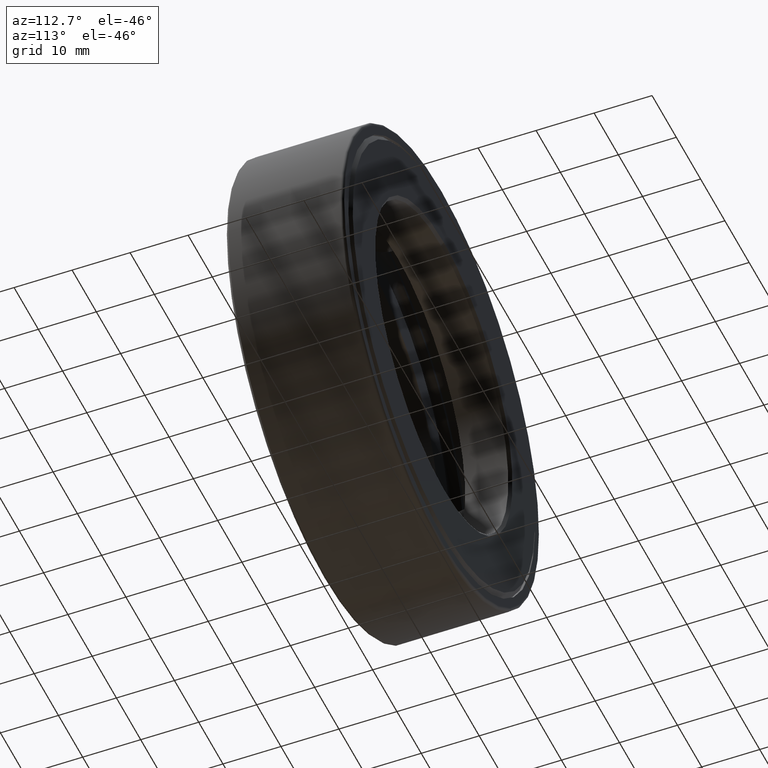
[diagram: clean part render]
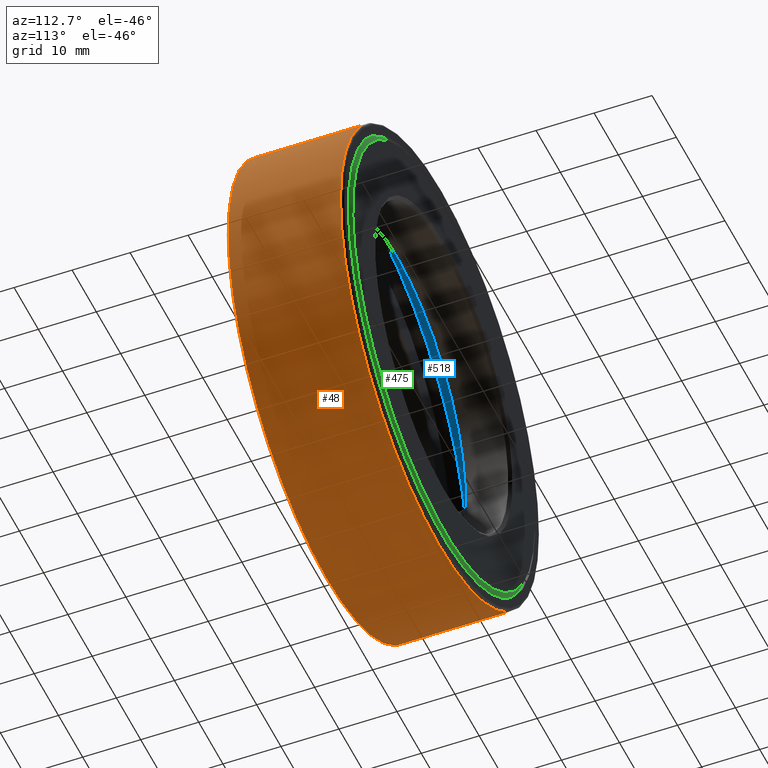
[diagram: same view with three faces highlighted in distinct colors, each labeled with its STEP entity id]
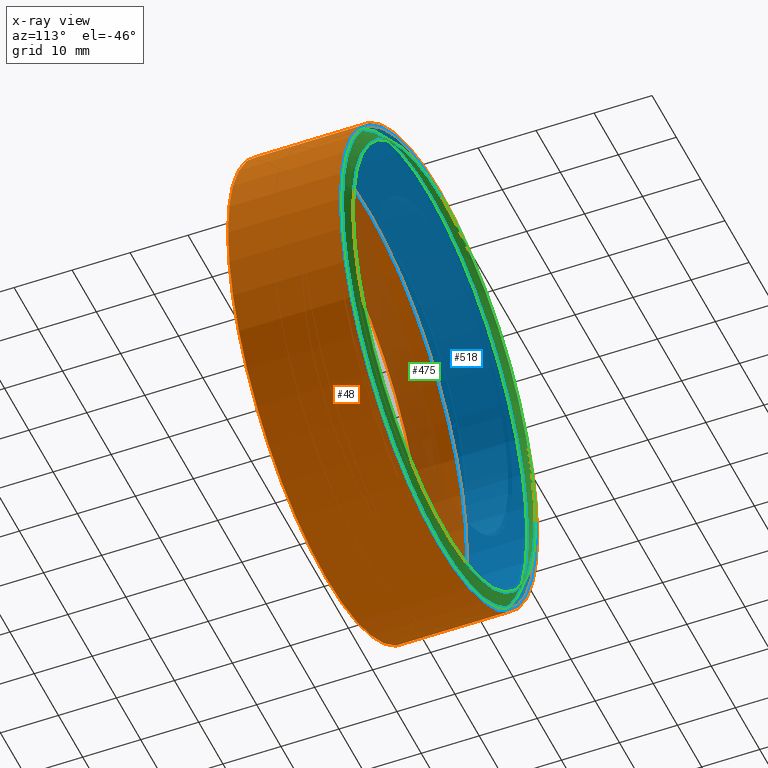
[diagram: x-ray of the same camera — body ghosted, the three highlighted faces saturated]
A machine part, auxiliary view with three faces highlighted in distinct colors.
The next image is the same camera in x-ray (body ghosted, the three faces saturated) — at least one of them is partly hidden behind the body in this view.
Their STEP definitions:

[orange] entity #48 — the highlighted cylindrical surface (bore or boss wall) has radius 40.4812 mm, axis along (-0, 1, -0).
#11 = CYLINDRICAL_SURFACE ( 'NONE', #218, 1.593749999999999600 ) ;
#21 = VERTEX_POINT ( 'NONE', #289 ) ;
#32 = ORIENTED_EDGE ( 'NONE', *, *, #457, .F. ) ;
#41 = CARTESIAN_POINT ( 'NONE',  ( 0.0000000000000000000, 0.01499999999999984000, 1.593749999999999300 ) ) ;
#48 = ADVANCED_FACE ( 'NONE', ( #277, #313 ), #11, .T. ) ;
#72 = EDGE_LOOP ( 'NONE', ( #557 ) ) ;
#76 = EDGE_CURVE ( 'NONE', #156, #156, #242, .T. ) ;
#83 = CARTESIAN_POINT ( 'NONE',  ( 0.0000000000000000000, 0.0000000000000000000, 0.0000000000000000000 ) ) ;
#92 = DIRECTION ( 'NONE',  ( -0.0000000000000000000, 1.000000000000000000, -0.0000000000000000000 ) ) ;
#133 = AXIS2_PLACEMENT_3D ( 'NONE', #602, #92, #337 ) ;
#156 = VERTEX_POINT ( 'NONE', #41 ) ;
#190 = AXIS2_PLACEMENT_3D ( 'NONE', #496, #541, #210 ) ;
#210 = DIRECTION ( 'NONE',  ( 0.0000000000000000000, 0.0000000000000000000, 1.000000000000000000 ) ) ;
#218 = AXIS2_PLACEMENT_3D ( 'NONE', #83, #462, #364 ) ;
#242 = CIRCLE ( 'NONE', #133, 1.593749999999999300 ) ;
#277 = FACE_OUTER_BOUND ( 'NONE', #349, .T. ) ;
#289 = CARTESIAN_POINT ( 'NONE',  ( 0.0000000000000000000, 0.7774999999999999700, 1.593750000000000000 ) ) ;
#313 = FACE_OUTER_BOUND ( 'NONE', #72, .T. ) ;
#337 = DIRECTION ( 'NONE',  ( 0.0000000000000000000, 0.0000000000000000000, 1.000000000000000000 ) ) ;
#349 = EDGE_LOOP ( 'NONE', ( #32 ) ) ;
#364 = DIRECTION ( 'NONE',  ( 0.0000000000000000000, 0.0000000000000000000, 1.000000000000000000 ) ) ;
#457 = EDGE_CURVE ( 'NONE', #21, #21, #515, .T. ) ;
#462 = DIRECTION ( 'NONE',  ( -0.0000000000000000000, 1.000000000000000000, -0.0000000000000000000 ) ) ;
#496 = CARTESIAN_POINT ( 'NONE',  ( 0.0000000000000000000, 0.7774999999999999700, 0.0000000000000000000 ) ) ;
#515 = CIRCLE ( 'NONE', #190, 1.593750000000000000 ) ;
#541 = DIRECTION ( 'NONE',  ( -0.0000000000000000000, 1.000000000000000000, -0.0000000000000000000 ) ) ;
#557 = ORIENTED_EDGE ( 'NONE', *, *, #76, .T. ) ;
#602 = CARTESIAN_POINT ( 'NONE',  ( 0.0000000000000000000, 0.01499999999999984000, 0.0000000000000000000 ) ) ;

[blue] entity #518 — the highlighted cylindrical surface (bore or boss wall) has radius 39.9733 mm, axis along (-0, 1, -0).
#8 = CARTESIAN_POINT ( 'NONE',  ( 0.0000000000000000000, 0.3124999999999998900, 1.573749999999999800 ) ) ;
#19 = DIRECTION ( 'NONE',  ( 0.0000000000000000000, 0.0000000000000000000, 1.000000000000000000 ) ) ;
#71 = AXIS2_PLACEMENT_3D ( 'NONE', #460, #181, #82 ) ;
#82 = DIRECTION ( 'NONE',  ( 0.0000000000000000000, 0.0000000000000000000, 1.000000000000000000 ) ) ;
#115 = DIRECTION ( 'NONE',  ( -0.0000000000000000000, 1.000000000000000000, -0.0000000000000000000 ) ) ;
#128 = FACE_OUTER_BOUND ( 'NONE', #396, .T. ) ;
#131 = CARTESIAN_POINT ( 'NONE',  ( 0.0000000000000000000, 0.7775000000000000800, 1.573749999999999800 ) ) ;
#181 = DIRECTION ( 'NONE',  ( -0.0000000000000000000, 1.000000000000000000, -0.0000000000000000000 ) ) ;
#220 = EDGE_LOOP ( 'NONE', ( #539 ) ) ;
#240 = FACE_OUTER_BOUND ( 'NONE', #220, .T. ) ;
#264 = VERTEX_POINT ( 'NONE', #131 ) ;
#270 = VERTEX_POINT ( 'NONE', #8 ) ;
#297 = CIRCLE ( 'NONE', #497, 1.573749999999999800 ) ;
#302 = DIRECTION ( 'NONE',  ( -0.0000000000000000000, 1.000000000000000000, -0.0000000000000000000 ) ) ;
#354 = EDGE_CURVE ( 'NONE', #264, #264, #297, .T. ) ;
#377 = CIRCLE ( 'NONE', #71, 1.573749999999999800 ) ;
#396 = EDGE_LOOP ( 'NONE', ( #436 ) ) ;
#436 = ORIENTED_EDGE ( 'NONE', *, *, #599, .F. ) ;
#460 = CARTESIAN_POINT ( 'NONE',  ( 0.0000000000000000000, 0.3124999999999998900, 0.0000000000000000000 ) ) ;
#493 = CYLINDRICAL_SURFACE ( 'NONE', #595, 1.573750000000000200 ) ;
#497 = AXIS2_PLACEMENT_3D ( 'NONE', #529, #115, #582 ) ;
#518 = ADVANCED_FACE ( 'NONE', ( #128, #240 ), #493, .F. ) ;
#529 = CARTESIAN_POINT ( 'NONE',  ( 0.0000000000000000000, 0.7775000000000000800, 0.0000000000000000000 ) ) ;
#539 = ORIENTED_EDGE ( 'NONE', *, *, #354, .T. ) ;
#542 = CARTESIAN_POINT ( 'NONE',  ( 0.0000000000000000000, 0.0000000000000000000, 0.0000000000000000000 ) ) ;
#582 = DIRECTION ( 'NONE',  ( 0.0000000000000000000, 0.0000000000000000000, 1.000000000000000000 ) ) ;
#595 = AXIS2_PLACEMENT_3D ( 'NONE', #542, #302, #19 ) ;
#599 = EDGE_CURVE ( 'NONE', #270, #270, #377, .T. ) ;

[green] entity #475 — the highlighted conical surface has half-angle 45 deg.
#16 = CONICAL_SURFACE ( 'NONE', #375, 1.478749999999999600, 0.7853981633974498300 ) ;
#33 = EDGE_CURVE ( 'NONE', #565, #565, #154, .T. ) ;
#34 = ORIENTED_EDGE ( 'NONE', *, *, #231, .F. ) ;
#64 = DIRECTION ( 'NONE',  ( 0.0000000000000000000, 0.0000000000000000000, -1.000000000000000000 ) ) ;
#97 = CARTESIAN_POINT ( 'NONE',  ( 0.0000000000000000000, 0.8124999999999998900, 1.478749999999999600 ) ) ;
#114 = FACE_OUTER_BOUND ( 'NONE', #534, .T. ) ;
#154 = CIRCLE ( 'NONE', #590, 1.566749999999999900 ) ;
#162 = DIRECTION ( 'NONE',  ( 0.0000000000000000000, 0.0000000000000000000, 1.000000000000000000 ) ) ;
#169 = ORIENTED_EDGE ( 'NONE', *, *, #33, .T. ) ;
#212 = DIRECTION ( 'NONE',  ( 0.0000000000000000000, -1.000000000000000000, 0.0000000000000000000 ) ) ;
#231 = EDGE_CURVE ( 'NONE', #393, #393, #366, .T. ) ;
#267 = FACE_BOUND ( 'NONE', #600, .T. ) ;
#317 = DIRECTION ( 'NONE',  ( -0.0000000000000000000, 1.000000000000000000, -0.0000000000000000000 ) ) ;
#366 = CIRCLE ( 'NONE', #392, 1.478749999999999600 ) ;
#375 = AXIS2_PLACEMENT_3D ( 'NONE', #499, #212, #64 ) ;
#387 = CARTESIAN_POINT ( 'NONE',  ( 0.0000000000000000000, 0.8124999999999998900, 0.0000000000000000000 ) ) ;
#392 = AXIS2_PLACEMENT_3D ( 'NONE', #387, #568, #162 ) ;
#393 = VERTEX_POINT ( 'NONE', #97 ) ;
#409 = DIRECTION ( 'NONE',  ( 0.0000000000000000000, 0.0000000000000000000, 1.000000000000000000 ) ) ;
#412 = CARTESIAN_POINT ( 'NONE',  ( 0.0000000000000000000, 0.7244999999999999200, 1.566749999999999900 ) ) ;
#458 = CARTESIAN_POINT ( 'NONE',  ( 0.0000000000000000000, 0.7244999999999999200, 0.0000000000000000000 ) ) ;
#475 = ADVANCED_FACE ( 'NONE', ( #114, #267 ), #16, .T. ) ;
#499 = CARTESIAN_POINT ( 'NONE',  ( 0.0000000000000000000, 0.8124999999999998900, 0.0000000000000000000 ) ) ;
#534 = EDGE_LOOP ( 'NONE', ( #169 ) ) ;
#565 = VERTEX_POINT ( 'NONE', #412 ) ;
#568 = DIRECTION ( 'NONE',  ( -0.0000000000000000000, 1.000000000000000000, -0.0000000000000000000 ) ) ;
#590 = AXIS2_PLACEMENT_3D ( 'NONE', #458, #317, #409 ) ;
#600 = EDGE_LOOP ( 'NONE', ( #34 ) ) ;